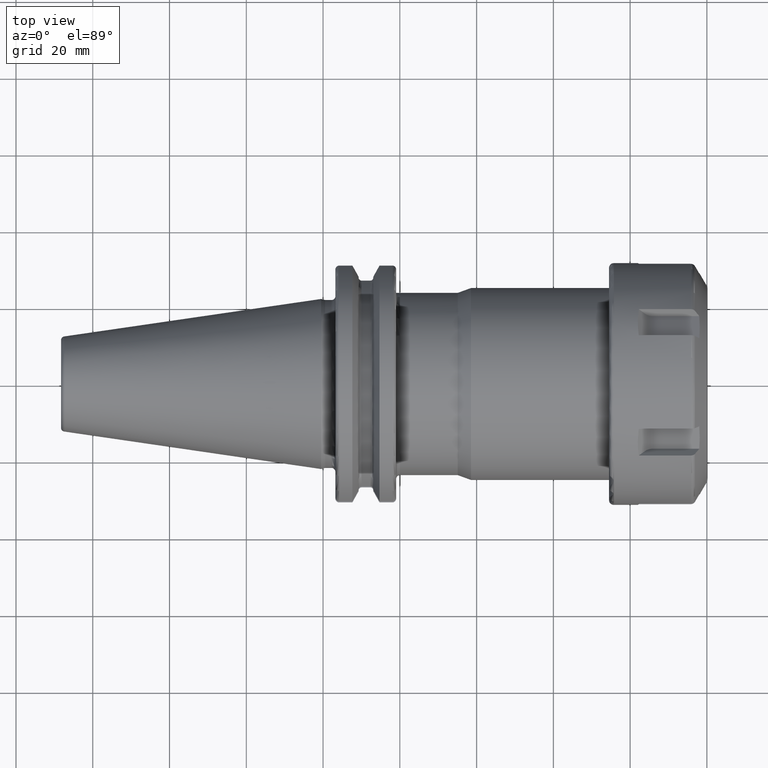
[diagram: clean part render]
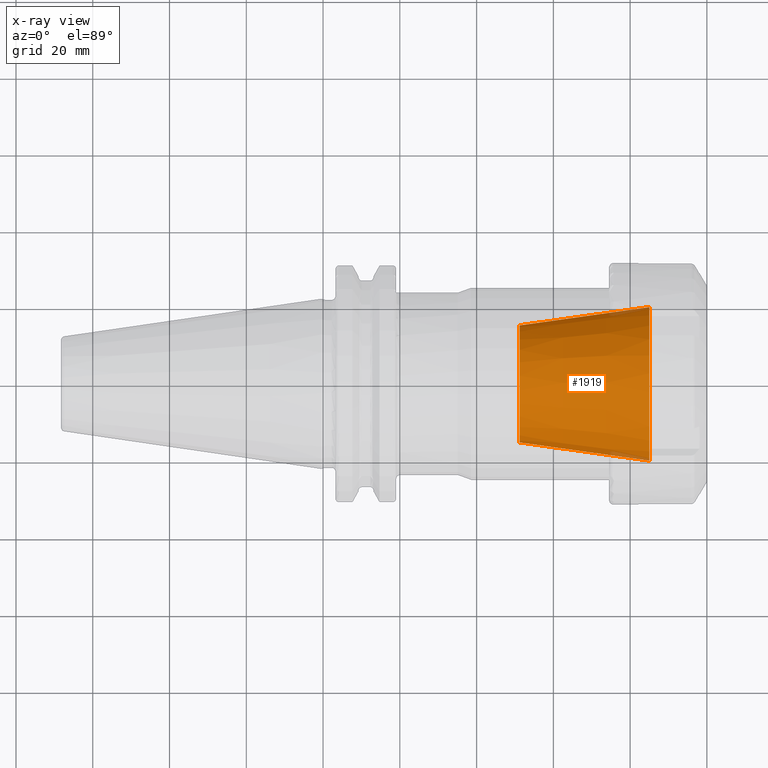
[diagram: x-ray — body ghosted, one internal face saturated and labeled with its STEP entity id]
A machine part, top view, then the same camera in x-ray: the body is ghosted and one INTERNAL B-rep face — a face not visible from any outside direction — is saturated and labeled: STEP entity #1919.
In plain terms, the highlighted conical surface has half-angle 8 deg.
Its self-contained STEP definition (entity closure, byte-faithful):
#285=CARTESIAN_POINT('',(8.5E1,0.E0,0.E0));
#286=DIRECTION('',(1.E0,0.E0,0.E0));
#287=DIRECTION('',(0.E0,1.E0,0.E0));
#288=AXIS2_PLACEMENT_3D('',#285,#286,#287);
#295=DIRECTION('',(-9.902680687416E-1,1.391731009601E-1,0.E0));
#296=VECTOR('',#295,3.413015853806E1);
#297=CARTESIAN_POINT('',(8.5E1,-2.E1,0.E0));
#298=LINE('',#297,#296);
#299=DIRECTION('',(-9.902680687416E-1,-1.391731009601E-1,0.E0));
#300=VECTOR('',#299,3.413015853806E1);
#301=CARTESIAN_POINT('',(8.5E1,2.E1,0.E0));
#302=LINE('',#301,#300);
#316=CARTESIAN_POINT('',(5.120199381868E1,0.E0,0.E0));
#317=DIRECTION('',(1.E0,0.E0,0.E0));
#318=DIRECTION('',(0.E0,1.E0,0.E0));
#319=AXIS2_PLACEMENT_3D('',#316,#317,#318);
#1512=CARTESIAN_POINT('',(5.120199381868E1,1.525E1,0.E0));
#1514=VERTEX_POINT('',#1512);
#1516=CARTESIAN_POINT('',(5.120199381868E1,-1.525E1,0.E0));
#1518=VERTEX_POINT('',#1516);
#1520=CARTESIAN_POINT('',(8.5E1,2.E1,0.E0));
#1521=CARTESIAN_POINT('',(8.5E1,-2.E1,0.E0));
#1522=VERTEX_POINT('',#1520);
#1523=VERTEX_POINT('',#1521);
#1905=CARTESIAN_POINT('',(6.810099690934E1,0.E0,0.E0));
#1906=DIRECTION('',(1.E0,0.E0,0.E0));
#1907=DIRECTION('',(0.E0,-1.E0,0.E0));
#1908=AXIS2_PLACEMENT_3D('',#1905,#1906,#1907);
#1909=CONICAL_SURFACE('',#1908,1.7625E1,8.E0);
#1910=ORIENTED_EDGE('',*,*,#1898,.F.);
#1912=ORIENTED_EDGE('',*,*,#1911,.T.);
#1914=ORIENTED_EDGE('',*,*,#1913,.T.);
#1916=ORIENTED_EDGE('',*,*,#1915,.F.);
#1917=EDGE_LOOP('',(#1910,#1912,#1914,#1916));
#1918=FACE_OUTER_BOUND('',#1917,.F.);
#1919=ADVANCED_FACE('',(#1918),#1909,.F.);
#289=CIRCLE('',#288,2.E1);
#320=CIRCLE('',#319,1.525E1);
#1898=EDGE_CURVE('',#1522,#1523,#289,.T.);
#1911=EDGE_CURVE('',#1522,#1514,#302,.T.);
#1913=EDGE_CURVE('',#1514,#1518,#320,.T.);
#1915=EDGE_CURVE('',#1523,#1518,#298,.T.);